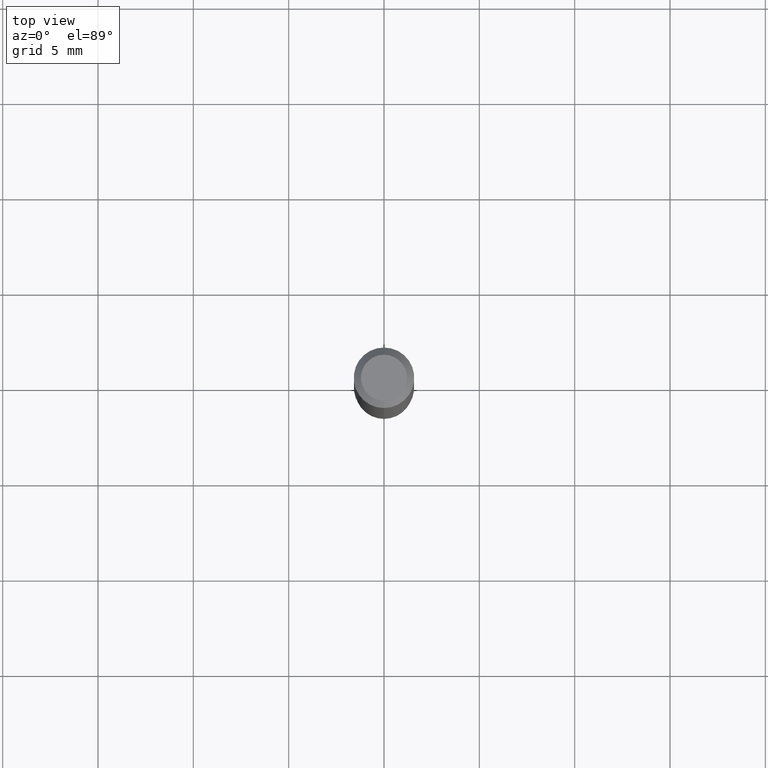
[diagram: clean part render]
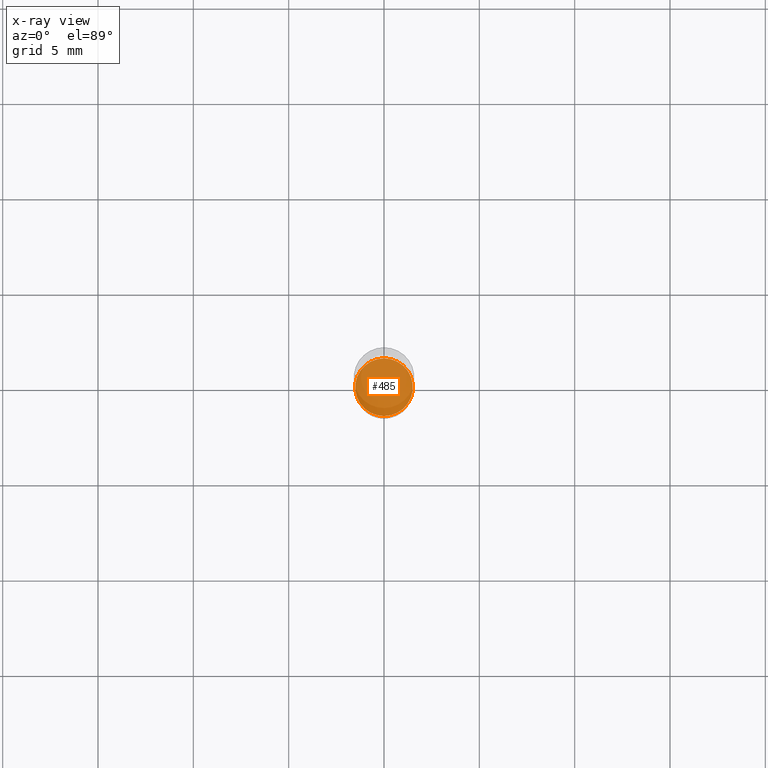
[diagram: x-ray — body ghosted, one internal face saturated and labeled with its STEP entity id]
A machine part, top view, then the same camera in x-ray: the body is ghosted and one INTERNAL B-rep face — a face not visible from any outside direction — is saturated and labeled: STEP entity #485.
In plain terms, the highlighted planar face has unit normal (-0, 0, 1).
Its self-contained STEP definition (entity closure, byte-faithful):
#12 = DIRECTION ( 'NONE',  ( -2.445440949719142652E-29, 3.491521230887940809E-15, 1.000000000000000000 ) ) ;
#83 = EDGE_CURVE ( 'NONE', #512, #401, #471, .T. ) ;
#134 = DIRECTION ( 'NONE',  ( -6.982962677686265922E-15, -1.000000000000000000, 4.591341165822291216E-15 ) ) ;
#141 = CIRCLE ( 'NONE', #323, 0.05949999999999999734 ) ;
#160 = ORIENTED_EDGE ( 'NONE', *, *, #255, .F. ) ;
#163 = AXIS2_PLACEMENT_3D ( 'NONE', #244, #12, #402 ) ;
#181 = PLANE ( 'NONE',  #443 ) ;
#207 = DIRECTION ( 'NONE',  ( -2.445440949719142652E-29, 3.491521230887940809E-15, 1.000000000000000000 ) ) ;
#244 = CARTESIAN_POINT ( 'NONE',  ( 2.787802682679822858E-29, -3.980334203212252420E-15, -1.140000000000000124 ) ) ;
#255 = EDGE_CURVE ( 'NONE', #401, #512, #141, .T. ) ;
#270 = EDGE_LOOP ( 'NONE', ( #160, #390 ) ) ;
#290 = CARTESIAN_POINT ( 'NONE',  ( 2.787802682679822858E-29, -3.980334203212252420E-15, -1.140000000000000124 ) ) ;
#294 = DIRECTION ( 'NONE',  ( -6.982962677686265922E-15, -1.000000000000000000, 3.491521230887940809E-15 ) ) ;
#300 = CARTESIAN_POINT ( 'NONE',  ( -4.154862793223048825E-16, -0.05950000000000398026, -1.139999999999999902 ) ) ;
#323 = AXIS2_PLACEMENT_3D ( 'NONE', #290, #207, #134 ) ;
#380 = FACE_OUTER_BOUND ( 'NONE', #270, .T. ) ;
#381 = CARTESIAN_POINT ( 'NONE',  ( 4.245492846166878976E-16, 0.05949999999999602135, -1.140000000000000346 ) ) ;
#390 = ORIENTED_EDGE ( 'NONE', *, *, #83, .F. ) ;
#401 = VERTEX_POINT ( 'NONE', #300 ) ;
#402 = DIRECTION ( 'NONE',  ( -6.982962677686265922E-15, -1.000000000000000000, 4.591341165822291216E-15 ) ) ;
#419 = DIRECTION ( 'NONE',  ( -2.445440949719142091E-29, 3.491521230887940809E-15, 1.000000000000000000 ) ) ;
#443 = AXIS2_PLACEMENT_3D ( 'NONE', #494, #419, #294 ) ;
#471 = CIRCLE ( 'NONE', #163, 0.05949999999999999734 ) ;
#485 = ADVANCED_FACE ( 'NONE', ( #380 ), #181, .F. ) ;
#494 = CARTESIAN_POINT ( 'NONE',  ( 2.787802682679822858E-29, -3.980334203212252420E-15, -1.140000000000000124 ) ) ;
#512 = VERTEX_POINT ( 'NONE', #381 ) ;